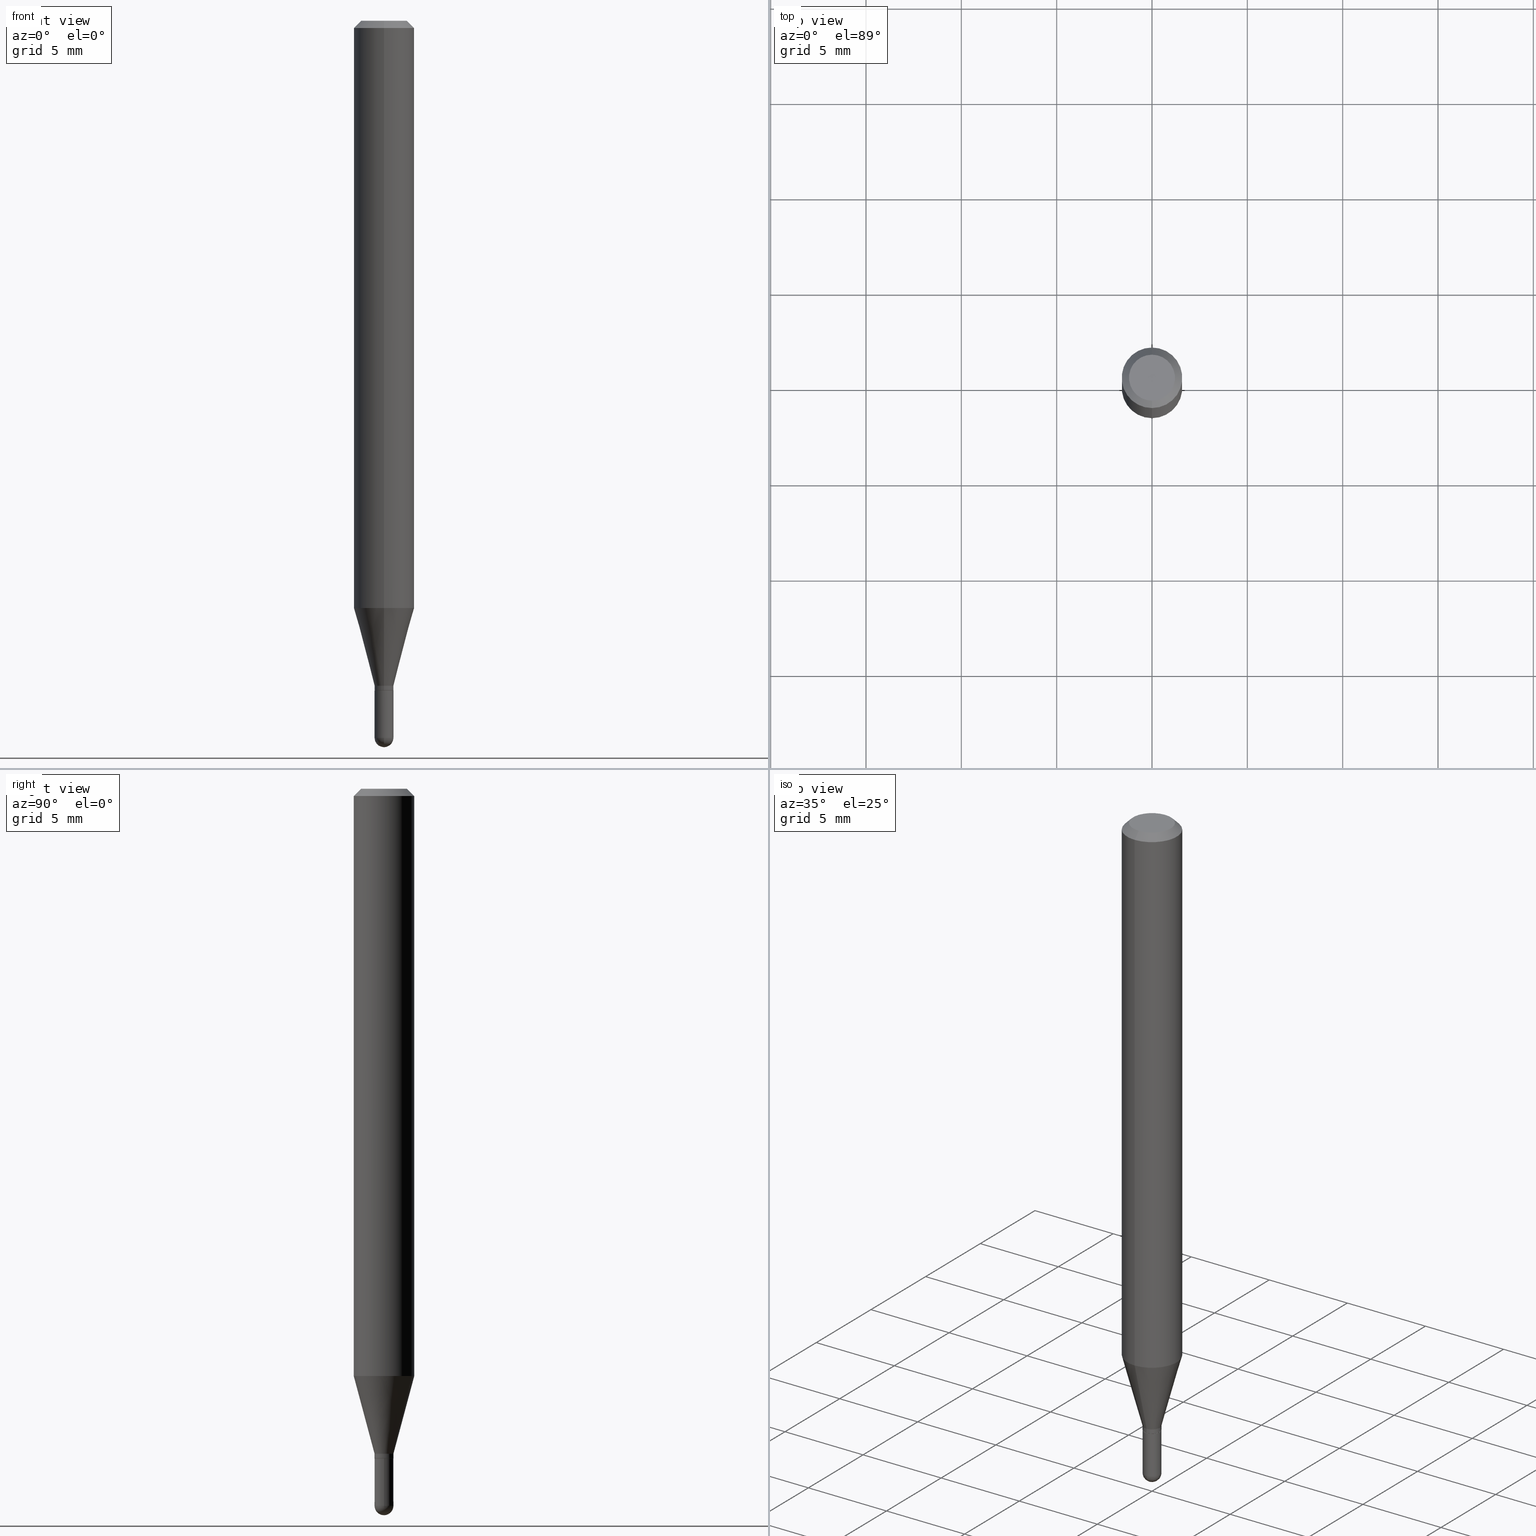
[diagram: canonical four-view strip — front | top / right | iso, engineering-drawing reading convention]
A machine part, canonical four-view strip (front | top / right | iso — engineering-drawing reading convention). The complete STEP part file that produces these views, byte-faithful:
ISO-10303-21;
HEADER;
FILE_DESCRIPTION (( 'STEP AP203' ),
    '1' );
FILE_NAME ('03174.STEP',
    '2024-03-08T18:28:48',
    ( '' ),
    ( '' ),
    'SwSTEP 2.0',
    'SolidWorks 2023',
    '' );
FILE_SCHEMA (( 'CONFIG_CONTROL_DESIGN' ));
ENDSEC;

DATA;
#1 = FACE_OUTER_BOUND ( 'NONE', #218, .T. ) ;
#2 = DIRECTION ( 'NONE',  ( 1.000000000000000000, -6.982962677686260400E-15, 0.000000000000000000 ) ) ;
#3 = PRODUCT_DEFINITION_SHAPE ( 'NONE', 'NONE',  #47 ) ;
#4 = DIRECTION ( 'NONE',  ( -2.445466670280503659E-29, 3.491484397580147957E-15, 1.000000000000000000 ) ) ;
#5 = EDGE_CURVE ( 'NONE', #203, #449, #277, .T. ) ;
#6 = DIRECTION ( 'NONE',  ( -6.982962677686265922E-15, -1.000000000000000000, 0.000000000000000000 ) ) ;
#7 = LOCAL_TIME ( 13, 28, 48.00000000000000000, #34 ) ;
#8 = DIRECTION ( 'NONE',  ( -2.445468806185136597E-29, 3.491481338843145583E-15, 1.000000000000000000 ) ) ;
#9 = DIRECTION ( 'NONE',  ( -6.982962677686266711E-15, -1.000000000000000000, 0.000000000000000000 ) ) ;
#10 = DIRECTION ( 'NONE',  ( -6.982962677686265922E-15, -1.000000000000000000, 0.000000000000000000 ) ) ;
#11 = ORIENTED_EDGE ( 'NONE', *, *, #73, .T. ) ;
#12 = DIRECTION ( 'NONE',  ( -6.982962677686266711E-15, -1.000000000000000000, 0.000000000000000000 ) ) ;
#13 = EDGE_CURVE ( 'NONE', #414, #337, #265, .T. ) ;
#14 = EDGE_LOOP ( 'NONE', ( #87, #76, #364, #149 ) ) ;
#15 = ORIENTED_EDGE ( 'NONE', *, *, #25, .T. ) ;
#16 = FACE_OUTER_BOUND ( 'NONE', #497, .T. ) ;
#17 = AXIS2_PLACEMENT_3D ( 'NONE', #278, #132, #289 ) ;
#18 = APPROVAL_DATE_TIME ( #367, #469 ) ;
#19 = ORIENTED_EDGE ( 'NONE', *, *, #5, .F. ) ;
#20 = ADVANCED_FACE ( 'NONE', ( #194 ), #56, .T. ) ;
#21 = AXIS2_PLACEMENT_3D ( 'NONE', #124, #359, #440 ) ;
#22 = CIRCLE ( 'NONE', #411, 0.06250000000000000000 ) ;
#23 = ORIENTED_EDGE ( 'NONE', *, *, #114, .T. ) ;
#24 = DIRECTION ( 'NONE',  ( 1.000000000000000000, -7.105427357601001070E-15, 4.926315508542082329E-29 ) ) ;
#25 = EDGE_CURVE ( 'NONE', #197, #373, #391, .T. ) ;
#26 = ORIENTED_EDGE ( 'NONE', *, *, #462, .F. ) ;
#27 = CIRCLE ( 'NONE', #379, 0.01899999999999999953 ) ;
#28 = CALENDAR_DATE ( 2024, 8, 3 ) ;
#29 = VECTOR ( 'NONE', #54, 39.37007874015748143 ) ;
#30 = CARTESIAN_POINT ( 'NONE',  ( 2.913225216616725443E-16, 0.01949999999999512887, -1.372999999999999998 ) ) ;
#31 = AXIS2_PLACEMENT_3D ( 'NONE', #369, #482, #251 ) ;
#32 = DIRECTION ( 'NONE',  ( -2.445466670280503659E-29, 3.491484397580147957E-15, 1.000000000000000000 ) ) ;
#33 = CARTESIAN_POINT ( 'NONE',  ( 3.620516567557095727E-29, -5.169138122157277171E-15, -1.480500000000000149 ) ) ;
#34 = COORDINATED_UNIVERSAL_TIME_OFFSET ( 5, 0, .BEHIND. ) ;
#35 = ADVANCED_FACE ( 'NONE', ( #430 ), #39, .F. ) ;
#36 = DIRECTION ( 'NONE',  ( -6.982962677686266711E-15, -1.000000000000000000, 0.000000000000000000 ) ) ;
#37 = CIRCLE ( 'NONE', #144, 0.04749999999999999362 ) ;
#38 = CARTESIAN_POINT ( 'NONE',  ( 3.620516567557095727E-29, -5.169138122157277171E-15, -1.480500000000000149 ) ) ;
#39 = PLANE ( 'NONE',  #82 ) ;
#40 = AXIS2_PLACEMENT_3D ( 'NONE', #346, #225, #120 ) ;
#41 = ORIENTED_EDGE ( 'NONE', *, *, #25, .F. ) ;
#42 = FACE_OUTER_BOUND ( 'NONE', #404, .T. ) ;
#43 = CC_DESIGN_PERSON_AND_ORGANIZATION_ASSIGNMENT ( #333, #416, ( #47 ) ) ;
#44 = SPHERICAL_SURFACE ( 'NONE', #453, 0.01949999999999980568 ) ;
#45 = DIRECTION ( 'NONE',  ( -2.445466670280503659E-29, 3.491484397580147957E-15, 1.000000000000000000 ) ) ;
#46 = VECTOR ( 'NONE', #94, 39.37007874015748854 ) ;
#47 = PRODUCT_DEFINITION ( 'UNKNOWN', '', #381, #166 ) ;
#48 = CARTESIAN_POINT ( 'NONE',  ( 3.357625738295131840E-29, -4.793808077877542953E-15, -1.372999999999999998 ) ) ;
#49 = EDGE_LOOP ( 'NONE', ( #375, #476, #483, #407 ) ) ;
#50 = CARTESIAN_POINT ( 'NONE',  ( 4.364351673553919652E-16, 0.06249999999999995143, -0.01499999999999997863 ) ) ;
#51 = DIRECTION ( 'NONE',  ( -2.445466670280503659E-29, 3.491484397580147957E-15, 1.000000000000000000 ) ) ;
#52 = ORIENTED_EDGE ( 'NONE', *, *, #291, .T. ) ;
#53 = UNCERTAINTY_MEASURE_WITH_UNIT (LENGTH_MEASURE( 1.000000000000000082E-05 ), #499, 'distance_accuracy_value', 'NONE');
#54 = DIRECTION ( 'NONE',  ( 4.937700262164548042E-15, 0.7071067811865451302, -0.7071067811865499042 ) ) ;
#55 = LINE ( 'NONE', #209, #193 ) ;
#56 = CONICAL_SURFACE ( 'NONE', #478, 0.06250000000000000000, 0.7853981633974483900 ) ;
#57 = CIRCLE ( 'NONE', #103, 0.01949999999999980568 ) ;
#58 = APPLICATION_PROTOCOL_DEFINITION ( 'international standard', 'config_control_design', 1994, #173 ) ;
#59 = EDGE_LOOP ( 'NONE', ( #505, #15, #249, #332 ) ) ;
#60 = EDGE_CURVE ( 'NONE', #177, #246, #396, .T. ) ;
#61 = DIRECTION ( 'NONE',  ( -2.445466670280503659E-29, 3.491484397580147957E-15, 1.000000000000000000 ) ) ;
#62 = ORIENTED_EDGE ( 'NONE', *, *, #496, .T. ) ;
#63 = CC_DESIGN_DATE_AND_TIME_ASSIGNMENT ( #472, #425, ( #347 ) ) ;
#64 = MANIFOLD_SOLID_BREP ( 'Body-Move/Copy2[1]', #254 ) ;
#65 = CIRCLE ( 'NONE', #502, 0.01949999999999999997 ) ;
#66 = PERSON_AND_ORGANIZATION_ROLE ( 'design_owner' ) ;
#67 = EDGE_CURVE ( 'NONE', #450, #158, #128, .T. ) ;
#68 = VERTEX_POINT ( 'NONE', #274 ) ;
#69 = CALENDAR_DATE ( 2024, 8, 3 ) ;
#70 = DIRECTION ( 'NONE',  ( -1.000000000000000000, 6.982962677686265922E-15, -4.883557194083112340E-29 ) ) ;
#71 = CONICAL_SURFACE ( 'NONE', #169, 0.01949999999999992017, 0.2617993877991505736 ) ;
#72 = DIRECTION ( 'NONE',  ( -2.445466670280503659E-29, 3.491484397580147957E-15, 1.000000000000000000 ) ) ;
#73 = EDGE_CURVE ( 'NONE', #449, #240, #433, .T. ) ;
#74 = PERSON_AND_ORGANIZATION_ROLE ( 'creator' ) ;
#75 = DIRECTION ( 'NONE',  ( 1.000000000000000000, -6.982962677686260400E-15, 0.000000000000000000 ) ) ;
#76 = ORIENTED_EDGE ( 'NONE', *, *, #67, .T. ) ;
#77 = PRODUCT ( '03174', '03174', '', ( #459 ) ) ;
#78 = CIRCLE ( 'NONE', #245, 0.01949999999999980568 ) ;
#79 = AXIS2_PLACEMENT_3D ( 'NONE', #408, #4, #201 ) ;
#80 = EDGE_CURVE ( 'NONE', #93, #203, #78, .T. ) ;
#81 = CARTESIAN_POINT ( 'NONE',  ( 3.357625738295131840E-29, -4.793808077877542953E-15, -1.372999999999999998 ) ) ;
#82 = AXIS2_PLACEMENT_3D ( 'NONE', #477, #235, #343 ) ;
#83 = CARTESIAN_POINT ( 'NONE',  ( -4.364351673553912750E-16, -0.06250000000000005551, -0.01499999999999954321 ) ) ;
#84 = CARTESIAN_POINT ( 'NONE',  ( -4.364351673553620871E-16, -0.06250000000000424660, -1.212521815274538728 ) ) ;
#85 = FACE_OUTER_BOUND ( 'NONE', #179, .T. ) ;
#86 = FACE_OUTER_BOUND ( 'NONE', #223, .T. ) ;
#87 = ORIENTED_EDGE ( 'NONE', *, *, #222, .F. ) ;
#88 = AXIS2_PLACEMENT_3D ( 'NONE', #112, #268, #273 ) ;
#89 = ORIENTED_EDGE ( 'NONE', *, *, #371, .T. ) ;
#90 = DIRECTION ( 'NONE',  ( -6.982962677686266711E-15, -1.000000000000000000, 0.000000000000000000 ) ) ;
#91 = DIRECTION ( 'NONE',  ( -2.445466670280503659E-29, 3.491484397580147957E-15, 1.000000000000000000 ) ) ;
#92 = VERTEX_POINT ( 'NONE', #152 ) ;
#93 = VERTEX_POINT ( 'NONE', #271 ) ;
#94 = DIRECTION ( 'NONE',  ( -1.807323732225332111E-15, -0.2588190451025184635, 0.9659258262890689783 ) ) ;
#95 = EDGE_CURVE ( 'NONE', #92, #181, #501, .T. ) ;
#96 = CIRCLE ( 'NONE', #243, 0.01949999999999992017 ) ;
#97 = APPROVAL_PERSON_ORGANIZATION ( #219, #469, #260 ) ;
#98 = VECTOR ( 'NONE', #129, 39.37007874015748143 ) ;
#99 = CARTESIAN_POINT ( 'NONE',  ( 0.01949999999999999303, -5.135096179103555879E-15, -1.480500000000000149 ) ) ;
#100 = ORIENTED_EDGE ( 'NONE', *, *, #95, .T. ) ;
#101 =( NAMED_UNIT ( * ) SI_UNIT ( $, .STERADIAN. ) SOLID_ANGLE_UNIT ( ) );
#102 = CC_DESIGN_PERSON_AND_ORGANIZATION_ASSIGNMENT ( #389, #267, ( #381 ) ) ;
#103 = AXIS2_PLACEMENT_3D ( 'NONE', #293, #24, #133 ) ;
#104 = PERSON_AND_ORGANIZATION ( #354, #118 ) ;
#105 = VECTOR ( 'NONE', #394, 39.37007874015748143 ) ;
#106 = LINE ( 'NONE', #154, #162 ) ;
#107 = EDGE_LOOP ( 'NONE', ( #338, #353 ) ) ;
#108 = APPROVAL_DATE_TIME ( #470, #282 ) ;
#109 = ADVANCED_FACE ( 'NONE', ( #42 ), #424, .T. ) ;
#110 = DIRECTION ( 'NONE',  ( -2.445468806185136877E-29, 3.491481338843145188E-15, 1.000000000000000000 ) ) ;
#111 = APPROVAL_PERSON_ORGANIZATION ( #372, #282, #185 ) ;
#112 = CARTESIAN_POINT ( 'NONE',  ( 3.316907271900976096E-16, 0.04749999999999999362, -4.610111489610974513E-17 ) ) ;
#113 = CARTESIAN_POINT ( 'NONE',  ( 4.440892098500625669E-16, 0.06250000000000000000, -2.182177748487592473E-16 ) ) ;
#114 = EDGE_CURVE ( 'NONE', #68, #177, #164, .T. ) ;
#115 = DIRECTION ( 'NONE',  ( -6.982962677686265922E-15, -1.000000000000000000, 3.491484397580147957E-15 ) ) ;
#116 = EDGE_LOOP ( 'NONE', ( #140, #147 ) ) ;
#117 = CONICAL_SURFACE ( 'NONE', #237, 0.01899999999999999953, 0.7853981633974718157 ) ;
#118 = ORGANIZATION ( 'UNSPECIFIED', 'UNSPECIFIED', '' ) ;
#119 = DIRECTION ( 'NONE',  ( -6.982962677686265922E-15, -1.000000000000000000, 3.483106191921935554E-15 ) ) ;
#120 = DIRECTION ( 'NONE',  ( -6.982962677686265922E-15, -1.000000000000000000, 0.000000000000000000 ) ) ;
#121 = DIRECTION ( 'NONE',  ( -2.445466670280503659E-29, 3.491484397580147957E-15, 1.000000000000000000 ) ) ;
#122 = FACE_OUTER_BOUND ( 'NONE', #442, .T. ) ;
#123 = ORIENTED_EDGE ( 'NONE', *, *, #247, .T. ) ;
#124 = CARTESIAN_POINT ( 'NONE',  ( -5.856618489058153610E-45, 8.361713666201989637E-31, 2.394887879778945435E-16 ) ) ;
#125 = ADVANCED_FACE ( 'NONE', ( #85 ), #339, .T. ) ;
#126 = CARTESIAN_POINT ( 'NONE',  ( 3.840629472727447874E-16, 0.04749999999999999362, 7.364327909283752044E-17 ) ) ;
#127 = ORIENTED_EDGE ( 'NONE', *, *, #415, .F. ) ;
#128 = CIRCLE ( 'NONE', #40, 0.01899999999999999953 ) ;
#129 = DIRECTION ( 'NONE',  ( -2.445468806185136877E-29, 3.491481338843145188E-15, 1.000000000000000000 ) ) ;
#130 = EDGE_LOOP ( 'NONE', ( #403, #380, #445, #19 ) ) ;
#131 = ADVANCED_FACE ( 'NONE', ( #170 ), #448, .T. ) ;
#132 = DIRECTION ( 'NONE',  ( -2.445468806185136597E-29, 3.491481338843145583E-15, 1.000000000000000000 ) ) ;
#133 = DIRECTION ( 'NONE',  ( 7.105427357601000281E-15, 1.000000000000000000, 0.000000000000000000 ) ) ;
#134 =( GEOMETRIC_REPRESENTATION_CONTEXT ( 3 ) GLOBAL_UNCERTAINTY_ASSIGNED_CONTEXT ( ( #53 ) ) GLOBAL_UNIT_ASSIGNED_CONTEXT ( ( #499, #253, #101 ) ) REPRESENTATION_CONTEXT ( 'NONE', 'WORKASPACE' ) );
#135 = ORIENTED_EDGE ( 'NONE', *, *, #13, .T. ) ;
#136 = DIRECTION ( 'NONE',  ( -2.445466670280503659E-29, 3.491484397580147957E-15, 1.000000000000000000 ) ) ;
#137 = EDGE_CURVE ( 'NONE', #361, #246, #55, .T. ) ;
#138 = ORIENTED_EDGE ( 'NONE', *, *, #487, .T. ) ;
#139 = CARTESIAN_POINT ( 'NONE',  ( -5.856618489058153610E-45, 8.361713666201989637E-31, 2.394887879778945435E-16 ) ) ;
#140 = ORIENTED_EDGE ( 'NONE', *, *, #341, .F. ) ;
#141 = DIRECTION ( 'NONE',  ( -6.982962677686266711E-15, -1.000000000000000000, 0.000000000000000000 ) ) ;
#142 = ORIENTED_EDGE ( 'NONE', *, *, #439, .T. ) ;
#143 = AXIS2_PLACEMENT_3D ( 'NONE', #202, #406, #363 ) ;
#144 = AXIS2_PLACEMENT_3D ( 'NONE', #139, #498, #216 ) ;
#145 = PERSON_AND_ORGANIZATION ( #354, #118 ) ;
#146 = CARTESIAN_POINT ( 'NONE',  ( -1.326762908760052313E-16, -0.01900000000000482553, -1.383000000000000229 ) ) ;
#147 = ORIENTED_EDGE ( 'NONE', *, *, #67, .F. ) ;
#148 = ADVANCED_FACE ( 'NONE', ( #122 ), #239, .T. ) ;
#149 = ORIENTED_EDGE ( 'NONE', *, *, #320, .F. ) ;
#150 = CARTESIAN_POINT ( 'NONE',  ( -1.326762908760052313E-16, -0.01900000000000482553, -1.383000000000000229 ) ) ;
#151 = PRODUCT_RELATED_PRODUCT_CATEGORY ( 'detail', '', ( #77 ) ) ;
#152 = CARTESIAN_POINT ( 'NONE',  ( 1.385558334732550101E-16, 0.01949999999999472988, -1.480500000000000149 ) ) ;
#153 = EDGE_CURVE ( 'NONE', #197, #327, #22, .T. ) ;
#154 = CARTESIAN_POINT ( 'NONE',  ( 1.385558334732525203E-16, 0.01949999999999512887, -1.372999999999999998 ) ) ;
#155 = ORIENTED_EDGE ( 'NONE', *, *, #184, .T. ) ;
#156 = DIRECTION ( 'NONE',  ( -6.982962677686266711E-15, -1.000000000000000000, 3.491484397580147957E-15 ) ) ;
#157 = ORIENTED_EDGE ( 'NONE', *, *, #114, .F. ) ;
#158 = VERTEX_POINT ( 'NONE', #150 ) ;
#159 = CC_DESIGN_APPROVAL ( #282, ( #381 ) ) ;
#160 = PLANE ( 'NONE',  #475 ) ;
#161 = DIRECTION ( 'NONE',  ( 1.000000000000000000, -6.982962677686265922E-15, 4.876176775795935793E-29 ) ) ;
#162 = VECTOR ( 'NONE', #473, 39.37007874015748143 ) ;
#163 = DIRECTION ( 'NONE',  ( 2.445466670280503659E-29, -3.491484397580147957E-15, -1.000000000000000000 ) ) ;
#164 = LINE ( 'NONE', #285, #326 ) ;
#165 = VERTEX_POINT ( 'NONE', #423 ) ;
#166 = DESIGN_CONTEXT ( 'detailed design', #173, 'design' ) ;
#167 = DIRECTION ( 'NONE',  ( -2.445466670280503659E-29, 3.491484397580147957E-15, 1.000000000000000000 ) ) ;
#168 = CARTESIAN_POINT ( 'NONE',  ( 0.000000000000000000, 0.000000000000000000, 0.000000000000000000 ) ) ;
#169 = AXIS2_PLACEMENT_3D ( 'NONE', #214, #136, #141 ) ;
#170 = FACE_OUTER_BOUND ( 'NONE', #258, .T. ) ;
#171 = ADVANCED_FACE ( 'NONE', ( #382 ), #426, .T. ) ;
#172 = COORDINATED_UNIVERSAL_TIME_OFFSET ( 5, 0, .BEHIND. ) ;
#173 = APPLICATION_CONTEXT ( 'configuration controlled 3d designs of mechanical parts and assemblies' ) ;
#174 = FACE_OUTER_BOUND ( 'NONE', #412, .T. ) ;
#175 = ORIENTED_EDGE ( 'NONE', *, *, #137, .F. ) ;
#176 = CALENDAR_DATE ( 2024, 8, 3 ) ;
#177 = VERTEX_POINT ( 'NONE', #511 ) ;
#178 = CARTESIAN_POINT ( 'NONE',  ( -4.364351673553916201E-16, -0.06250000000000000000, 2.182177748487592473E-16 ) ) ;
#179 = EDGE_LOOP ( 'NONE', ( #288, #263, #296, #467 ) ) ;
#180 = APPROVAL_STATUS ( 'not_yet_approved' ) ;
#181 = VERTEX_POINT ( 'NONE', #308 ) ;
#182 = ORIENTED_EDGE ( 'NONE', *, *, #378, .T. ) ;
#183 = CIRCLE ( 'NONE', #21, 0.04749999999999999362 ) ;
#184 = EDGE_CURVE ( 'NONE', #337, #373, #434, .T. ) ;
#185 = APPROVAL_ROLE ( '' ) ;
#186 = AXIS2_PLACEMENT_3D ( 'NONE', #81, #32, #36 ) ;
#187 = DIRECTION ( 'NONE',  ( 1.000000000000000000, -6.982962677686260400E-15, 0.000000000000000000 ) ) ;
#188 = CARTESIAN_POINT ( 'NONE',  ( 0.01949999999999999997, -4.964886463834953365E-15, -1.383000000000000229 ) ) ;
#189 = DIRECTION ( 'NONE',  ( 1.000000000000000000, -6.982962677686260400E-15, 0.000000000000000000 ) ) ;
#190 = COORDINATED_UNIVERSAL_TIME_OFFSET ( 5, 0, .BEHIND. ) ;
#191 = DIRECTION ( 'NONE',  ( -6.982962677686265922E-15, -1.000000000000000000, 0.000000000000000000 ) ) ;
#192 = CC_DESIGN_PERSON_AND_ORGANIZATION_ASSIGNMENT ( #310, #74, ( #381 ) ) ;
#193 = VECTOR ( 'NONE', #329, 39.37007874015748143 ) ;
#194 = FACE_OUTER_BOUND ( 'NONE', #213, .T. ) ;
#195 = DIRECTION ( 'NONE',  ( -6.982962677686265922E-15, -1.000000000000000000, 4.370956789862821150E-15 ) ) ;
#196 = CARTESIAN_POINT ( 'NONE',  ( 3.382080404997937611E-29, -4.828722921853346228E-15, -1.383000000000000229 ) ) ;
#197 = VERTEX_POINT ( 'NONE', #392 ) ;
#198 = EDGE_CURVE ( 'NONE', #158, #68, #466, .T. ) ;
#199 = CARTESIAN_POINT ( 'NONE',  ( 3.618848993293195667E-29, -5.171526183415615213E-15, -1.480500000000000149 ) ) ;
#200 = ORIENTED_EDGE ( 'NONE', *, *, #291, .F. ) ;
#201 = DIRECTION ( 'NONE',  ( -6.982962677686265922E-15, -1.000000000000000000, 4.370956789862821150E-15 ) ) ;
#202 = CARTESIAN_POINT ( 'NONE',  ( 0.000000000000000000, 0.000000000000000000, 0.000000000000000000 ) ) ;
#203 = VERTEX_POINT ( 'NONE', #463 ) ;
#204 = DIRECTION ( 'NONE',  ( -2.445468806185136597E-29, 3.491481338843145583E-15, 1.000000000000000000 ) ) ;
#205 = ORIENTED_EDGE ( 'NONE', *, *, #261, .T. ) ;
#206 = COORDINATED_UNIVERSAL_TIME_OFFSET ( 5, 0, .BEHIND. ) ;
#207 = AXIS2_PLACEMENT_3D ( 'NONE', #33, #429, #75 ) ;
#208 = AXIS2_PLACEMENT_3D ( 'NONE', #241, #45, #444 ) ;
#209 = CARTESIAN_POINT ( 'NONE',  ( 1.385558334732189444E-16, 0.01949999999999992017, -6.808394575281260561E-17 ) ) ;
#210 = ORIENTED_EDGE ( 'NONE', *, *, #153, .T. ) ;
#211 = AXIS2_PLACEMENT_3D ( 'NONE', #224, #72, #503 ) ;
#212 = DATE_TIME_ROLE ( 'creation_date' ) ;
#213 = EDGE_LOOP ( 'NONE', ( #419, #135, #155, #335 ) ) ;
#214 = CARTESIAN_POINT ( 'NONE',  ( 3.357625738295131840E-29, -4.793808077877542953E-15, -1.372999999999999998 ) ) ;
#215 = DIMENSIONAL_EXPONENTS ( 1.000000000000000000, 0.000000000000000000, 0.000000000000000000, 0.000000000000000000, 0.000000000000000000, 0.000000000000000000, 0.000000000000000000 ) ;
#216 = DIRECTION ( 'NONE',  ( -6.982962677686266711E-15, -1.000000000000000000, 3.491484397580147168E-15 ) ) ;
#217 = CONICAL_SURFACE ( 'NONE', #266, 0.01949999999999992017, 0.2617993877991505736 ) ;
#218 = EDGE_LOOP ( 'NONE', ( #286, #138 ) ) ;
#219 = PERSON_AND_ORGANIZATION ( #354, #118 ) ;
#220 = ORIENTED_EDGE ( 'NONE', *, *, #60, .T. ) ;
#221 = PERSON_AND_ORGANIZATION ( #354, #118 ) ;
#222 = EDGE_CURVE ( 'NONE', #450, #361, #311, .T. ) ;
#223 = EDGE_LOOP ( 'NONE', ( #182, #441, #370, #157 ) ) ;
#224 = CARTESIAN_POINT ( 'NONE',  ( 3.668200005420697037E-31, -5.237226596370138612E-17, -0.01499999999999976179 ) ) ;
#225 = DIRECTION ( 'NONE',  ( -2.445466670280503659E-29, 3.491484397580147957E-15, 1.000000000000000000 ) ) ;
#226 = APPROVAL_PERSON_ORGANIZATION ( #221, #374, #307 ) ;
#227 = MANIFOLD_SOLID_BREP ( 'Body-Move/Copy2[2]', #259 ) ;
#228 = COORDINATED_UNIVERSAL_TIME_OFFSET ( 5, 0, .BEHIND. ) ;
#229 = DIRECTION ( 'NONE',  ( -2.445468806185136597E-29, 3.491481338843145583E-15, 1.000000000000000000 ) ) ;
#230 = DIRECTION ( 'NONE',  ( -2.445468806185136597E-29, 3.491481338843145583E-15, 1.000000000000000000 ) ) ;
#231 = CC_DESIGN_PERSON_AND_ORGANIZATION_ASSIGNMENT ( #104, #66, ( #77 ) ) ;
#232 = CALENDAR_DATE ( 2024, 8, 3 ) ;
#233 = DIRECTION ( 'NONE',  ( -2.445466670280503659E-29, 3.491484397580147957E-15, 1.000000000000000000 ) ) ;
#234 = ORIENTED_EDGE ( 'NONE', *, *, #297, .F. ) ;
#235 = DIRECTION ( 'NONE',  ( 2.438088387897960049E-29, -3.491481338843145188E-15, -1.000000000000000000 ) ) ;
#236 = AXIS2_PLACEMENT_3D ( 'NONE', #451, #331, #417 ) ;
#237 = AXIS2_PLACEMENT_3D ( 'NONE', #340, #233, #191 ) ;
#238 = DIRECTION ( 'NONE',  ( -6.982962677686265922E-15, -1.000000000000000000, 0.000000000000000000 ) ) ;
#239 = CYLINDRICAL_SURFACE ( 'NONE', #368, 0.01949999999999999997 ) ;
#240 = VERTEX_POINT ( 'NONE', #188 ) ;
#241 = CARTESIAN_POINT ( 'NONE',  ( 0.000000000000000000, 0.000000000000000000, 0.000000000000000000 ) ) ;
#242 = DIRECTION ( 'NONE',  ( -2.445466670280503659E-29, 3.491484397580147957E-15, 1.000000000000000000 ) ) ;
#243 = AXIS2_PLACEMENT_3D ( 'NONE', #48, #121, #400 ) ;
#244 = CARTESIAN_POINT ( 'NONE',  ( 3.382080404997937611E-29, -4.828722921853346228E-15, -1.383000000000000229 ) ) ;
#245 = AXIS2_PLACEMENT_3D ( 'NONE', #383, #70, #238 ) ;
#246 = VERTEX_POINT ( 'NONE', #30 ) ;
#247 = EDGE_CURVE ( 'NONE', #449, #92, #461, .T. ) ;
#248 = FACE_OUTER_BOUND ( 'NONE', #116, .T. ) ;
#249 = ORIENTED_EDGE ( 'NONE', *, *, #184, .F. ) ;
#250 = CARTESIAN_POINT ( 'NONE',  ( 3.668200005420697037E-31, -5.237226596370138612E-17, -0.01499999999999976179 ) ) ;
#251 = DIRECTION ( 'NONE',  ( 1.000000000000000000, -6.982962677686265922E-15, 4.876176775795935793E-29 ) ) ;
#252 = ORIENTED_EDGE ( 'NONE', *, *, #446, .F. ) ;
#253 =( NAMED_UNIT ( * ) PLANE_ANGLE_UNIT ( ) SI_UNIT ( $, .RADIAN. ) );
#254 = CLOSED_SHELL ( 'NONE', ( #148, #313, #35, #171, #131 ) ) ;
#255 = CONICAL_SURFACE ( 'NONE', #324, 0.06250000000000000000, 0.7853981633974483900 ) ;
#256 = CIRCLE ( 'NONE', #207, 0.01949999999999999303 ) ;
#257 = ADVANCED_FACE ( 'NONE', ( #387 ), #305, .T. ) ;
#258 = EDGE_LOOP ( 'NONE', ( #234, #205, #456, #11, #454 ) ) ;
#259 = CLOSED_SHELL ( 'NONE', ( #428, #125, #20, #257, #480, #360, #385, #393, #279, #330, #269, #109 ) ) ;
#260 = APPROVAL_ROLE ( '' ) ;
#261 = EDGE_CURVE ( 'NONE', #181, #203, #256, .T. ) ;
#262 = CARTESIAN_POINT ( 'NONE',  ( -0.01949999999999999997, 1.385558334732195360E-16, -9.591923425997065392E-31 ) ) ;
#263 = ORIENTED_EDGE ( 'NONE', *, *, #222, .T. ) ;
#264 = DIRECTION ( 'NONE',  ( -6.982962677686265922E-15, -1.000000000000000000, 0.000000000000000000 ) ) ;
#265 = LINE ( 'NONE', #388, #105 ) ;
#266 = AXIS2_PLACEMENT_3D ( 'NONE', #447, #91, #9 ) ;
#267 = PERSON_AND_ORGANIZATION_ROLE ( 'design_supplier' ) ;
#268 = DIRECTION ( 'NONE',  ( 2.445466670280503379E-29, -3.491484397580147957E-15, -1.000000000000000000 ) ) ;
#269 = ADVANCED_FACE ( 'NONE', ( #342 ), #117, .T. ) ;
#270 = DIRECTION ( 'NONE',  ( 5.024295867788180719E-15, 0.7071067811865666686, 0.7071067811865284769 ) ) ;
#271 = CARTESIAN_POINT ( 'NONE',  ( 3.665701847881855086E-29, -5.240804100152224451E-15, -1.500000000000000222 ) ) ;
#272 = APPROVAL_STATUS ( 'not_yet_approved' ) ;
#273 = DIRECTION ( 'NONE',  ( 6.982962677686265922E-15, 1.000000000000000000, -3.491484397580147957E-15 ) ) ;
#274 = CARTESIAN_POINT ( 'NONE',  ( -1.361677722148483124E-16, -0.01950000000000481210, -1.382500000000000284 ) ) ;
#275 = CIRCLE ( 'NONE', #410, 0.01949999999999992017 ) ;
#276 = AXIS2_PLACEMENT_3D ( 'NONE', #168, #489, #156 ) ;
#277 = CIRCLE ( 'NONE', #348, 0.01949999999999999303 ) ;
#278 = CARTESIAN_POINT ( 'NONE',  ( 3.382083358954044842E-29, -4.828718691620071353E-15, -1.383000000000000229 ) ) ;
#279 = ADVANCED_FACE ( 'NONE', ( #1 ), #508, .F. ) ;
#280 = FACE_OUTER_BOUND ( 'NONE', #464, .T. ) ;
#281 = CARTESIAN_POINT ( 'NONE',  ( 4.440892098500923957E-16, 0.06249999999999995143, -0.01499999999999997863 ) ) ;
#282 = APPROVAL ( #304, 'UNSPECIFIED' ) ;
#283 = CARTESIAN_POINT ( 'NONE',  ( 3.382083358954044842E-29, -4.828718691620071353E-15, -1.383000000000000229 ) ) ;
#284 = AXIS2_PLACEMENT_3D ( 'NONE', #468, #300, #115 ) ;
#285 = CARTESIAN_POINT ( 'NONE',  ( -1.361677722148816418E-16, -0.01949999999999992017, 6.808394575281260561E-17 ) ) ;
#286 = ORIENTED_EDGE ( 'NONE', *, *, #415, .T. ) ;
#287 = FACE_OUTER_BOUND ( 'NONE', #507, .T. ) ;
#288 = ORIENTED_EDGE ( 'NONE', *, *, #341, .T. ) ;
#289 = DIRECTION ( 'NONE',  ( 1.000000000000000000, -6.982962677686258033E-15, 0.000000000000000000 ) ) ;
#290 = CC_DESIGN_APPROVAL ( #374, ( #347 ) ) ;
#291 = EDGE_CURVE ( 'NONE', #246, #197, #106, .T. ) ;
#292 = VECTOR ( 'NONE', #427, 39.37007874015748143 ) ;
#293 = CARTESIAN_POINT ( 'NONE',  ( 3.618848993293195667E-29, -5.171526183415615213E-15, -1.480500000000000149 ) ) ;
#294 = ORIENTED_EDGE ( 'NONE', *, *, #462, .T. ) ;
#295 = LINE ( 'NONE', #178, #460 ) ;
#296 = ORIENTED_EDGE ( 'NONE', *, *, #378, .F. ) ;
#297 = EDGE_CURVE ( 'NONE', #181, #165, #506, .T. ) ;
#298 = LOCAL_TIME ( 13, 28, 48.00000000000000000, #228 ) ;
#299 = ORIENTED_EDGE ( 'NONE', *, *, #13, .F. ) ;
#300 = DIRECTION ( 'NONE',  ( -2.445466670280503659E-29, 3.491484397580147957E-15, 1.000000000000000000 ) ) ;
#301 = DIRECTION ( 'NONE',  ( 1.000000000000000000, -6.982962677686265922E-15, 4.883557194083112340E-29 ) ) ;
#302 = DIRECTION ( 'NONE',  ( 2.445466670280503659E-29, -3.491484397580147957E-15, -1.000000000000000000 ) ) ;
#303 = ADVANCED_BREP_SHAPE_REPRESENTATION ( '03174', ( #64, #227, #236 ), #134 ) ;
#304 = APPROVAL_STATUS ( 'not_yet_approved' ) ;
#305 = CYLINDRICAL_SURFACE ( 'NONE', #284, 0.06250000000000000000 ) ;
#306 = LOCAL_TIME ( 13, 28, 48.00000000000000000, #206 ) ;
#307 = APPROVAL_ROLE ( '' ) ;
#308 = CARTESIAN_POINT ( 'NONE',  ( -0.01949999999999999303, -4.860372573415455392E-15, -1.480500000000000149 ) ) ;
#309 = CARTESIAN_POINT ( 'NONE',  ( 3.620516567557095727E-29, -5.169138122157277171E-15, -1.480500000000000149 ) ) ;
#310 = PERSON_AND_ORGANIZATION ( #354, #118 ) ;
#311 = LINE ( 'NONE', #345, #384 ) ;
#312 = CARTESIAN_POINT ( 'NONE',  ( 3.668200005420697037E-31, -5.237226596370138612E-17, -0.01499999999999976179 ) ) ;
#313 = ADVANCED_FACE ( 'NONE', ( #405 ), #44, .T. ) ;
#314 = CARTESIAN_POINT ( 'NONE',  ( 3.668200005420697037E-31, -5.237226596370138612E-17, -0.01499999999999976179 ) ) ;
#315 = LOCAL_TIME ( 13, 28, 48.00000000000000000, #172 ) ;
#316 = VECTOR ( 'NONE', #110, 39.37007874015748143 ) ;
#317 = CARTESIAN_POINT ( 'NONE',  ( 3.380857671662796790E-29, -4.826977179654555354E-15, -1.382500000000000284 ) ) ;
#318 = CARTESIAN_POINT ( 'NONE',  ( 2.965181686241898291E-29, -4.233500999756610852E-15, -1.212521815274538728 ) ) ;
#319 = LINE ( 'NONE', #50, #29 ) ;
#320 = EDGE_CURVE ( 'NONE', #361, #68, #275, .T. ) ;
#321 = ORIENTED_EDGE ( 'NONE', *, *, #320, .T. ) ;
#322 = DIRECTION ( 'NONE',  ( -6.982962677686265922E-15, -1.000000000000000000, 0.000000000000000000 ) ) ;
#323 = ORIENTED_EDGE ( 'NONE', *, *, #439, .F. ) ;
#324 = AXIS2_PLACEMENT_3D ( 'NONE', #250, #163, #484 ) ;
#325 = DIRECTION ( 'NONE',  ( 1.000000000000000000, -6.982962677686265922E-15, 4.883557194083112340E-29 ) ) ;
#326 = VECTOR ( 'NONE', #51, 39.37007874015748143 ) ;
#327 = VERTEX_POINT ( 'NONE', #84 ) ;
#328 = CARTESIAN_POINT ( 'NONE',  ( -1.361677722148480659E-16, -0.01950000000000471495, -1.372999999999999998 ) ) ;
#329 = DIRECTION ( 'NONE',  ( -2.445466670280503659E-29, 3.491484397580147957E-15, 1.000000000000000000 ) ) ;
#330 = ADVANCED_FACE ( 'NONE', ( #248 ), #160, .F. ) ;
#331 = DIRECTION ( 'NONE',  ( 0.000000000000000000, 0.000000000000000000, 1.000000000000000000 ) ) ;
#332 = ORIENTED_EDGE ( 'NONE', *, *, #496, .F. ) ;
#333 = PERSON_AND_ORGANIZATION ( #354, #118 ) ;
#334 = CIRCLE ( 'NONE', #17, 0.01949999999999999997 ) ;
#335 = ORIENTED_EDGE ( 'NONE', *, *, #409, .F. ) ;
#336 = CARTESIAN_POINT ( 'NONE',  ( 1.367794766338528106E-16, 0.01899999999999517006, -1.383000000000000229 ) ) ;
#337 = VERTEX_POINT ( 'NONE', #83 ) ;
#338 = ORIENTED_EDGE ( 'NONE', *, *, #446, .T. ) ;
#339 = CONICAL_SURFACE ( 'NONE', #418, 0.01899999999999999953, 0.7853981633974718157 ) ;
#340 = CARTESIAN_POINT ( 'NONE',  ( 3.382080404997937611E-29, -4.828722921853346228E-15, -1.383000000000000229 ) ) ;
#341 = EDGE_CURVE ( 'NONE', #158, #450, #27, .T. ) ;
#342 = FACE_OUTER_BOUND ( 'NONE', #14, .T. ) ;
#343 = DIRECTION ( 'NONE',  ( -1.000000000000000000, 6.982962677686265922E-15, -4.876176775795935793E-29 ) ) ;
#344 = DATE_AND_TIME ( #232, #7 ) ;
#345 = CARTESIAN_POINT ( 'NONE',  ( 1.350031197944528297E-16, 0.01899999999999517006, -1.383000000000000229 ) ) ;
#346 = CARTESIAN_POINT ( 'NONE',  ( 3.382080404997937611E-29, -4.828722921853346228E-15, -1.383000000000000229 ) ) ;
#347 = SECURITY_CLASSIFICATION ( '', '', #421 ) ;
#348 = AXIS2_PLACEMENT_3D ( 'NONE', #309, #230, #189 ) ;
#349 = CARTESIAN_POINT ( 'NONE',  ( 3.620516567557095727E-29, -5.169138122157277171E-15, -1.480500000000000149 ) ) ;
#350 = CC_DESIGN_DATE_AND_TIME_ASSIGNMENT ( #495, #212, ( #47 ) ) ;
#351 = DIRECTION ( 'NONE',  ( 1.000000000000000000, -6.982962677686258033E-15, 0.000000000000000000 ) ) ;
#352 = ORIENTED_EDGE ( 'NONE', *, *, #153, .F. ) ;
#353 = ORIENTED_EDGE ( 'NONE', *, *, #420, .T. ) ;
#354 = PERSON ( 'UNSPECIFIED', 'UNSPECIFIED', 'UNSPECIFIED', ('UNSPECIFIED'), ('UNSPECIFIED'), ('UNSPECIFIED') ) ;
#355 = DIRECTION ( 'NONE',  ( -2.445466670280503659E-29, 3.491484397580147957E-15, 1.000000000000000000 ) ) ;
#356 = CC_DESIGN_SECURITY_CLASSIFICATION ( #347, ( #381 ) ) ;
#357 = DIRECTION ( 'NONE',  ( -2.445466670280503379E-29, 3.491484397580147957E-15, 1.000000000000000000 ) ) ;
#358 = VERTEX_POINT ( 'NONE', #126 ) ;
#359 = DIRECTION ( 'NONE',  ( -2.445466670280503659E-29, 3.491484397580147957E-15, 1.000000000000000000 ) ) ;
#360 = ADVANCED_FACE ( 'NONE', ( #287 ), #217, .T. ) ;
#361 = VERTEX_POINT ( 'NONE', #402 ) ;
#362 = CYLINDRICAL_SURFACE ( 'NONE', #276, 0.01949999999999992017 ) ;
#363 = DIRECTION ( 'NONE',  ( -6.982962677686266711E-15, -1.000000000000000000, 3.491484397580147957E-15 ) ) ;
#364 = ORIENTED_EDGE ( 'NONE', *, *, #198, .T. ) ;
#365 = AXIS2_PLACEMENT_3D ( 'NONE', #349, #397, #2 ) ;
#366 = AXIS2_PLACEMENT_3D ( 'NONE', #398, #355, #12 ) ;
#367 = DATE_AND_TIME ( #176, #306 ) ;
#368 = AXIS2_PLACEMENT_3D ( 'NONE', #399, #8, #161 ) ;
#369 = CARTESIAN_POINT ( 'NONE',  ( 0.000000000000000000, 0.000000000000000000, 0.000000000000000000 ) ) ;
#370 = ORIENTED_EDGE ( 'NONE', *, *, #60, .F. ) ;
#371 = EDGE_CURVE ( 'NONE', #246, #177, #96, .T. ) ;
#372 = PERSON_AND_ORGANIZATION ( #354, #118 ) ;
#373 = VERTEX_POINT ( 'NONE', #281 ) ;
#374 = APPROVAL ( #272, 'UNSPECIFIED' ) ;
#375 = ORIENTED_EDGE ( 'NONE', *, *, #457, .F. ) ;
#376 = DIRECTION ( 'NONE',  ( -2.445466670280503659E-29, 3.491484397580147957E-15, 1.000000000000000000 ) ) ;
#377 = CC_DESIGN_APPROVAL ( #469, ( #47 ) ) ;
#378 = EDGE_CURVE ( 'NONE', #68, #361, #395, .T. ) ;
#379 = AXIS2_PLACEMENT_3D ( 'NONE', #196, #167, #322 ) ;
#380 = ORIENTED_EDGE ( 'NONE', *, *, #457, .T. ) ;
#381 = PRODUCT_DEFINITION_FORMATION_WITH_SPECIFIED_SOURCE ( 'ANY', '', #77, .NOT_KNOWN. ) ;
#382 = FACE_OUTER_BOUND ( 'NONE', #49, .T. ) ;
#383 = CARTESIAN_POINT ( 'NONE',  ( 3.618848993293195667E-29, -5.171526183415615213E-15, -1.480500000000000149 ) ) ;
#384 = VECTOR ( 'NONE', #270, 39.37007874015748143 ) ;
#385 = ADVANCED_FACE ( 'NONE', ( #280 ), #438, .T. ) ;
#386 = SHAPE_DEFINITION_REPRESENTATION ( #3, #303 ) ;
#387 = FACE_OUTER_BOUND ( 'NONE', #59, .T. ) ;
#388 = CARTESIAN_POINT ( 'NONE',  ( -4.287811248607203282E-16, -0.06250000000000005551, -0.01499999999999954321 ) ) ;
#389 = PERSON_AND_ORGANIZATION ( #354, #118 ) ;
#390 = CARTESIAN_POINT ( 'NONE',  ( 3.618848993293195667E-29, -5.171526183415615213E-15, -1.480500000000000149 ) ) ;
#391 = LINE ( 'NONE', #113, #292 ) ;
#392 = CARTESIAN_POINT ( 'NONE',  ( 4.440892098500920012E-16, 0.06249999999999574646, -1.212521815274538950 ) ) ;
#393 = ADVANCED_FACE ( 'NONE', ( #16 ), #255, .T. ) ;
#394 = DIRECTION ( 'NONE',  ( -4.851104656540964275E-15, -0.7071067811865500152, -0.7071067811865450192 ) ) ;
#395 = CIRCLE ( 'NONE', #366, 0.01949999999999992017 ) ;
#396 = CIRCLE ( 'NONE', #186, 0.01949999999999992017 ) ;
#397 = DIRECTION ( 'NONE',  ( -2.445468806185136597E-29, 3.491481338843145583E-15, 1.000000000000000000 ) ) ;
#398 = CARTESIAN_POINT ( 'NONE',  ( 3.380857671662796790E-29, -4.826977179654555354E-15, -1.382500000000000284 ) ) ;
#399 = CARTESIAN_POINT ( 'NONE',  ( 0.000000000000000000, 0.000000000000000000, 0.000000000000000000 ) ) ;
#400 = DIRECTION ( 'NONE',  ( -6.982962677686266711E-15, -1.000000000000000000, 0.000000000000000000 ) ) ;
#401 = EDGE_CURVE ( 'NONE', #327, #197, #443, .T. ) ;
#402 = CARTESIAN_POINT ( 'NONE',  ( 1.385558334732523231E-16, 0.01949999999999503172, -1.382500000000000284 ) ) ;
#403 = ORIENTED_EDGE ( 'NONE', *, *, #80, .F. ) ;
#404 = EDGE_LOOP ( 'NONE', ( #175, #321, #23, #494 ) ) ;
#405 = FACE_OUTER_BOUND ( 'NONE', #130, .T. ) ;
#406 = DIRECTION ( 'NONE',  ( -2.445466670280503659E-29, 3.491484397580147957E-15, 1.000000000000000000 ) ) ;
#407 = ORIENTED_EDGE ( 'NONE', *, *, #95, .F. ) ;
#408 = CARTESIAN_POINT ( 'NONE',  ( 2.965181686241898291E-29, -4.233500999756610852E-15, -1.212521815274538728 ) ) ;
#409 = EDGE_CURVE ( 'NONE', #358, #373, #319, .T. ) ;
#410 = AXIS2_PLACEMENT_3D ( 'NONE', #317, #479, #90 ) ;
#411 = AXIS2_PLACEMENT_3D ( 'NONE', #318, #61, #195 ) ;
#412 = EDGE_LOOP ( 'NONE', ( #220, #52, #500, #26 ) ) ;
#413 =( LENGTH_UNIT ( ) NAMED_UNIT ( * ) SI_UNIT ( $, .METRE. ) );
#414 = VERTEX_POINT ( 'NONE', #481 ) ;
#415 = EDGE_CURVE ( 'NONE', #358, #414, #183, .T. ) ;
#416 = PERSON_AND_ORGANIZATION_ROLE ( 'creator' ) ;
#417 = DIRECTION ( 'NONE',  ( 1.000000000000000000, 0.000000000000000000, 0.000000000000000000 ) ) ;
#418 = AXIS2_PLACEMENT_3D ( 'NONE', #485, #242, #10 ) ;
#419 = ORIENTED_EDGE ( 'NONE', *, *, #487, .F. ) ;
#420 = EDGE_CURVE ( 'NONE', #165, #240, #65, .T. ) ;
#421 = SECURITY_CLASSIFICATION_LEVEL ( 'unclassified' ) ;
#422 = CIRCLE ( 'NONE', #510, 0.06250000000000000000 ) ;
#423 = CARTESIAN_POINT ( 'NONE',  ( -0.01949999999999999997, -4.860372573415455392E-15, -1.383000000000000229 ) ) ;
#424 = CYLINDRICAL_SURFACE ( 'NONE', #143, 0.01949999999999992017 ) ;
#425 = DATE_TIME_ROLE ( 'classification_date' ) ;
#426 = SPHERICAL_SURFACE ( 'NONE', #488, 0.01949999999999980568 ) ;
#427 = DIRECTION ( 'NONE',  ( -2.445466670280503659E-29, 3.491484397580147957E-15, 1.000000000000000000 ) ) ;
#428 = ADVANCED_FACE ( 'NONE', ( #86 ), #362, .T. ) ;
#429 = DIRECTION ( 'NONE',  ( -2.445468806185136597E-29, 3.491481338843145583E-15, 1.000000000000000000 ) ) ;
#430 = FACE_OUTER_BOUND ( 'NONE', #107, .T. ) ;
#431 = DIRECTION ( 'NONE',  ( -4.937700262164664794E-15, -0.7071067811865617836, 0.7071067811865333619 ) ) ;
#432 = VECTOR ( 'NONE', #431, 39.37007874015748143 ) ;
#433 = LINE ( 'NONE', #512, #316 ) ;
#434 = CIRCLE ( 'NONE', #211, 0.06250000000000000000 ) ;
#435 = DIRECTION ( 'NONE',  ( -6.982962677686265922E-15, -1.000000000000000000, 3.491484397580147957E-15 ) ) ;
#436 = ORIENTED_EDGE ( 'NONE', *, *, #73, .F. ) ;
#437 = APPLICATION_CONTEXT ( 'configuration controlled 3d designs of mechanical parts and assemblies' ) ;
#438 = CYLINDRICAL_SURFACE ( 'NONE', #208, 0.06250000000000000000 ) ;
#439 = EDGE_CURVE ( 'NONE', #373, #337, #422, .T. ) ;
#440 = DIRECTION ( 'NONE',  ( -6.982962677686266711E-15, -1.000000000000000000, 3.491484397580147168E-15 ) ) ;
#441 = ORIENTED_EDGE ( 'NONE', *, *, #137, .T. ) ;
#442 = EDGE_LOOP ( 'NONE', ( #100, #490, #252, #436, #123 ) ) ;
#443 = CIRCLE ( 'NONE', #79, 0.06250000000000000000 ) ;
#444 = DIRECTION ( 'NONE',  ( -6.982962677686265922E-15, -1.000000000000000000, 3.491484397580147957E-15 ) ) ;
#445 = ORIENTED_EDGE ( 'NONE', *, *, #247, .F. ) ;
#446 = EDGE_CURVE ( 'NONE', #240, #165, #334, .T. ) ;
#447 = CARTESIAN_POINT ( 'NONE',  ( 3.357625738295131840E-29, -4.793808077877542953E-15, -1.372999999999999998 ) ) ;
#448 = CYLINDRICAL_SURFACE ( 'NONE', #31, 0.01949999999999999997 ) ;
#449 = VERTEX_POINT ( 'NONE', #99 ) ;
#450 = VERTEX_POINT ( 'NONE', #336 ) ;
#451 = CARTESIAN_POINT ( 'NONE',  ( 0.000000000000000000, 0.000000000000000000, 0.000000000000000000 ) ) ;
#452 = LOCAL_TIME ( 13, 28, 48.00000000000000000, #190 ) ;
#453 = AXIS2_PLACEMENT_3D ( 'NONE', #199, #325, #6 ) ;
#454 = ORIENTED_EDGE ( 'NONE', *, *, #420, .F. ) ;
#455 = LINE ( 'NONE', #328, #46 ) ;
#456 = ORIENTED_EDGE ( 'NONE', *, *, #5, .T. ) ;
#457 = EDGE_CURVE ( 'NONE', #93, #92, #57, .T. ) ;
#458 = LENGTH_MEASURE_WITH_UNIT ( LENGTH_MEASURE( 0.02539999999999999897 ), #413 );
#459 = MECHANICAL_CONTEXT ( 'NONE', #437, 'mechanical' ) ;
#460 = VECTOR ( 'NONE', #376, 39.37007874015748143 ) ;
#461 = CIRCLE ( 'NONE', #504, 0.01949999999999999303 ) ;
#462 = EDGE_CURVE ( 'NONE', #177, #327, #455, .T. ) ;
#463 = CARTESIAN_POINT ( 'NONE',  ( -1.361677722148453048E-16, -0.01950000000000506883, -1.480500000000000149 ) ) ;
#464 = EDGE_LOOP ( 'NONE', ( #41, #210, #62, #323 ) ) ;
#465 = PERSON_AND_ORGANIZATION_ROLE ( 'classification_officer' ) ;
#466 = LINE ( 'NONE', #146, #432 ) ;
#467 = ORIENTED_EDGE ( 'NONE', *, *, #198, .F. ) ;
#468 = CARTESIAN_POINT ( 'NONE',  ( 0.000000000000000000, 0.000000000000000000, 0.000000000000000000 ) ) ;
#469 = APPROVAL ( #180, 'UNSPECIFIED' ) ;
#470 = DATE_AND_TIME ( #69, #298 ) ;
#471 = DIRECTION ( 'NONE',  ( 6.982962677686265922E-15, 1.000000000000000000, -3.483106191921935554E-15 ) ) ;
#472 = DATE_AND_TIME ( #28, #452 ) ;
#473 = DIRECTION ( 'NONE',  ( 1.839019923739602287E-15, 0.2588190451025252359, 0.9659258262890670910 ) ) ;
#474 = DIRECTION ( 'NONE',  ( -2.445466670280503659E-29, 3.491484397580147957E-15, 1.000000000000000000 ) ) ;
#475 = AXIS2_PLACEMENT_3D ( 'NONE', #244, #357, #435 ) ;
#476 = ORIENTED_EDGE ( 'NONE', *, *, #80, .T. ) ;
#477 = CARTESIAN_POINT ( 'NONE',  ( 1.361677722149159819E-16, 0.01949999999999517050, -1.383000000000000229 ) ) ;
#478 = AXIS2_PLACEMENT_3D ( 'NONE', #312, #302, #471 ) ;
#479 = DIRECTION ( 'NONE',  ( -2.445466670280503659E-29, 3.491484397580147957E-15, 1.000000000000000000 ) ) ;
#480 = ADVANCED_FACE ( 'NONE', ( #174 ), #71, .T. ) ;
#481 = CARTESIAN_POINT ( 'NONE',  ( -3.773273898774340269E-16, -0.04749999999999999362, 4.053342968629515172E-16 ) ) ;
#482 = DIRECTION ( 'NONE',  ( -2.445468806185136597E-29, 3.491481338843145583E-15, 1.000000000000000000 ) ) ;
#483 = ORIENTED_EDGE ( 'NONE', *, *, #261, .F. ) ;
#484 = DIRECTION ( 'NONE',  ( 6.982962677686265922E-15, 1.000000000000000000, -3.483106191921935554E-15 ) ) ;
#485 = CARTESIAN_POINT ( 'NONE',  ( 3.382080404997937611E-29, -4.828722921853346228E-15, -1.383000000000000229 ) ) ;
#486 = ORIENTED_EDGE ( 'NONE', *, *, #409, .T. ) ;
#487 = EDGE_CURVE ( 'NONE', #414, #358, #37, .T. ) ;
#488 = AXIS2_PLACEMENT_3D ( 'NONE', #390, #301, #264 ) ;
#489 = DIRECTION ( 'NONE',  ( -2.445466670280503659E-29, 3.491484397580147957E-15, 1.000000000000000000 ) ) ;
#490 = ORIENTED_EDGE ( 'NONE', *, *, #297, .T. ) ;
#491 = CC_DESIGN_PERSON_AND_ORGANIZATION_ASSIGNMENT ( #145, #465, ( #347 ) ) ;
#492 = CALENDAR_DATE ( 2024, 8, 3 ) ;
#493 = APPLICATION_PROTOCOL_DEFINITION ( 'international standard', 'config_control_design', 1994, #437 ) ;
#494 = ORIENTED_EDGE ( 'NONE', *, *, #371, .F. ) ;
#495 = DATE_AND_TIME ( #492, #315 ) ;
#496 = EDGE_CURVE ( 'NONE', #327, #337, #295, .T. ) ;
#497 = EDGE_LOOP ( 'NONE', ( #299, #127, #486, #142 ) ) ;
#498 = DIRECTION ( 'NONE',  ( -2.445466670280503659E-29, 3.491484397580147957E-15, 1.000000000000000000 ) ) ;
#499 =( CONVERSION_BASED_UNIT ( 'INCH', #458 ) LENGTH_UNIT ( ) NAMED_UNIT ( #215 ) );
#500 = ORIENTED_EDGE ( 'NONE', *, *, #401, .F. ) ;
#501 = CIRCLE ( 'NONE', #365, 0.01949999999999999303 ) ;
#502 = AXIS2_PLACEMENT_3D ( 'NONE', #283, #204, #351 ) ;
#503 = DIRECTION ( 'NONE',  ( -6.982962677686265922E-15, -1.000000000000000000, 3.483106191921935554E-15 ) ) ;
#504 = AXIS2_PLACEMENT_3D ( 'NONE', #38, #229, #187 ) ;
#505 = ORIENTED_EDGE ( 'NONE', *, *, #401, .T. ) ;
#506 = LINE ( 'NONE', #262, #98 ) ;
#507 = EDGE_LOOP ( 'NONE', ( #200, #89, #294, #352 ) ) ;
#508 = PLANE ( 'NONE',  #88 ) ;
#509 = APPROVAL_DATE_TIME ( #344, #374 ) ;
#510 = AXIS2_PLACEMENT_3D ( 'NONE', #314, #474, #119 ) ;
#511 = CARTESIAN_POINT ( 'NONE',  ( -1.361677722148480659E-16, -0.01950000000000471495, -1.372999999999999998 ) ) ;
#512 = CARTESIAN_POINT ( 'NONE',  ( 0.01949999999999999997, -1.361677722148821841E-16, 9.508544712802074656E-31 ) ) ;
ENDSEC;
END-ISO-10303-21;
